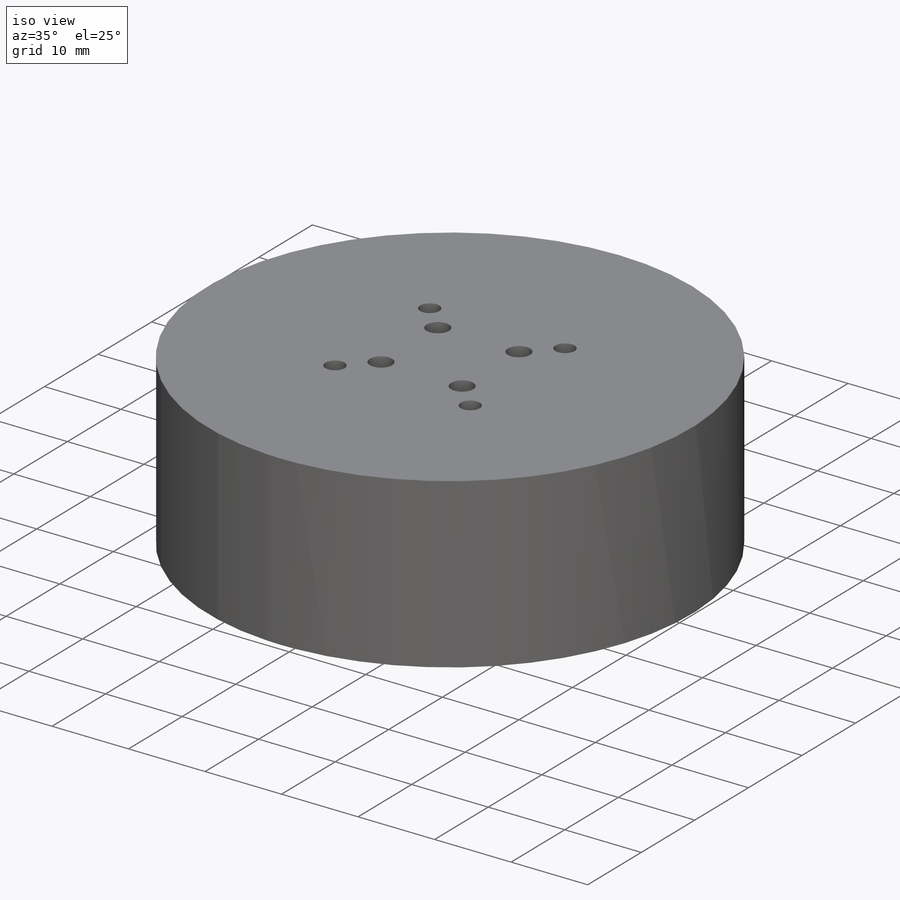
[diagram: iso view]
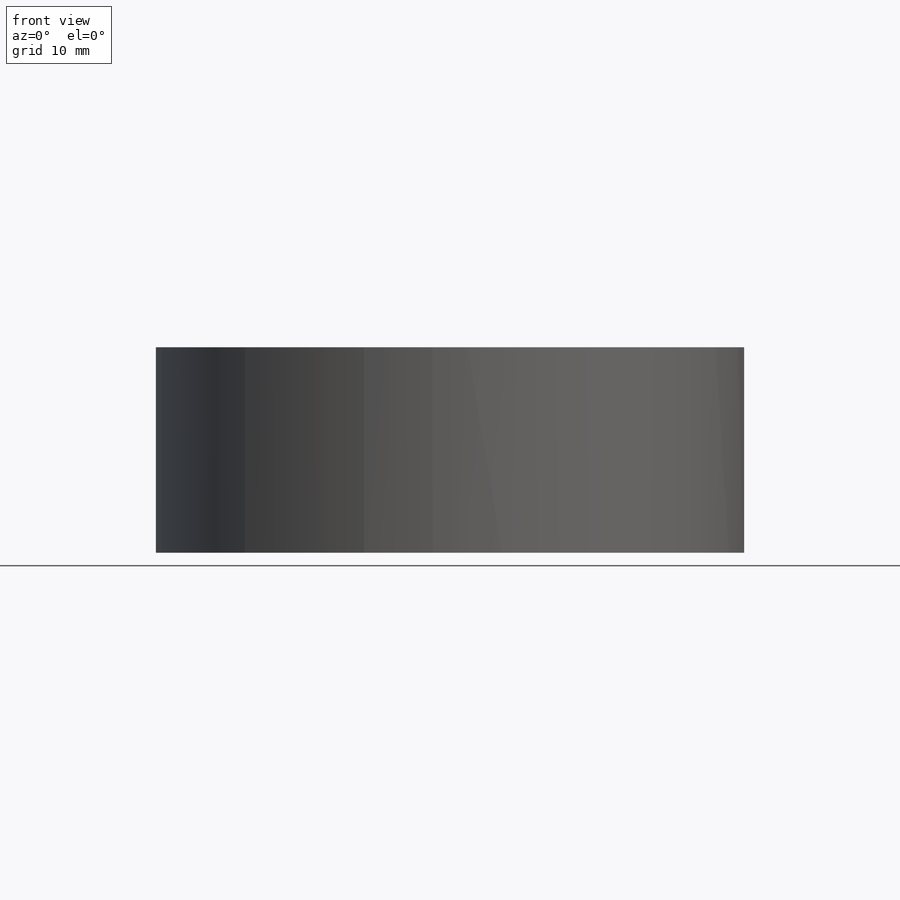
[diagram: front view]
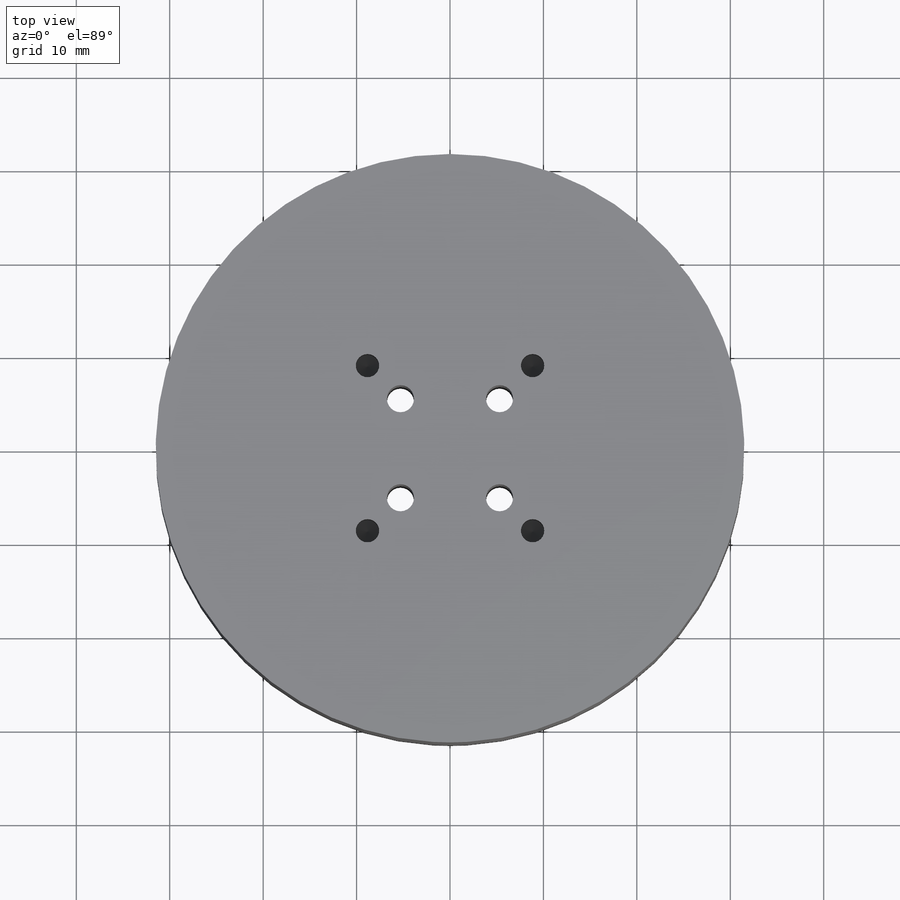
[diagram: top view]
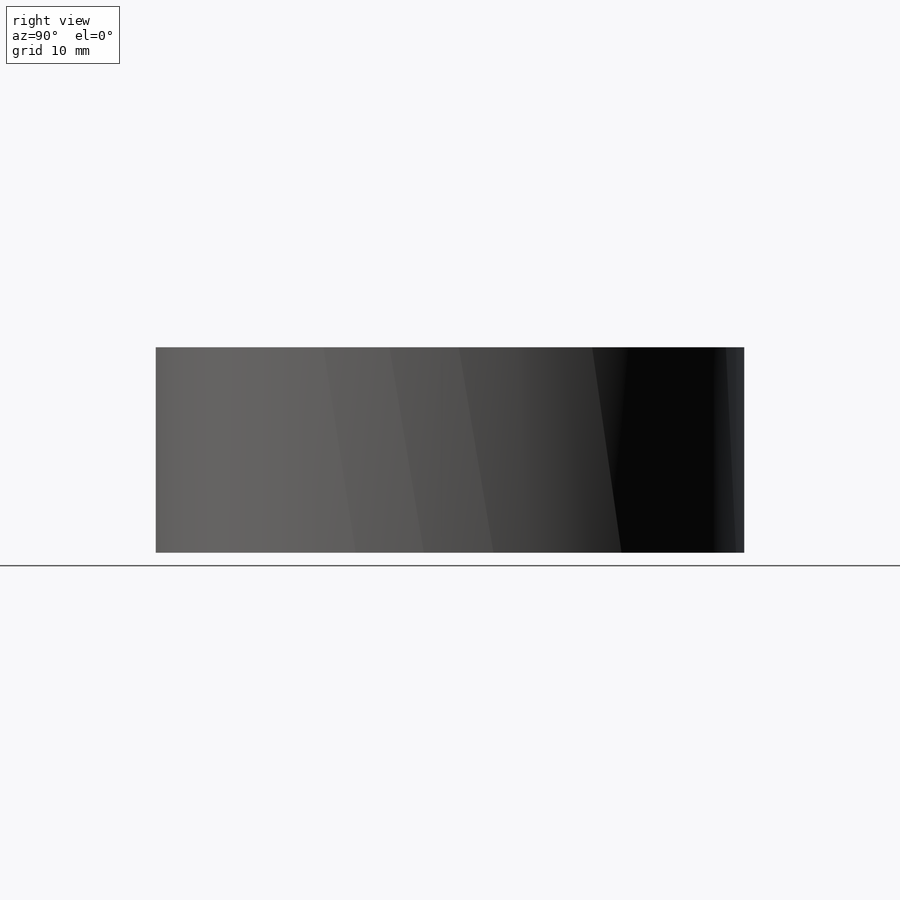
[diagram: right view]
SOLIDWORKS PART (.sldprt)
format: sldprt  version: not decoded by parser v0  size: 231,424 bytes
history: native  units: mm
features: sketch x7, hole x3, material x1, extrude x1 (+13 scaffold rows collapsed)
feature tree (25):
  scaffold x13  (default folders/planes/origin — collapsed)
  material  "Material <not specified>"
  sketch  "Sketch1"  dims[D1=~33.142647mm]
  extrude  "Boss-Extrude1"  Depth=22mm
  hole  "Tap Drill for M3x0.5 Tap1"  Diameter=2.5mm Depth=4.76mm
  sketch  "Sketch6"  dims[D1=12.5mm]
  sketch  "Sketch5"  dims[hole-wizard template sketch: 47 standard entries collapsed; hole parameters kept: c15.Hole Depth=4.76mm c15.D3=~14.816244mm c15.Drill Angle=118.0deg]
  hole  "Tap Drill for M2.5x0.45 Tap1"  Diameter=2.05mm Depth=3.5mm
  sketch  "Sketch8"  dims[D1=7.5mm]
  sketch  "Sketch7"  dims[hole-wizard template sketch: 47 standard entries collapsed; hole parameters kept: c15.Hole Depth=3.5mm c15.D3=~14.816244mm c15.Drill Angle=118.0deg]
  hole  "M2.5 Clearance Hole1"  Diameter=2.9mm Depth=22mm
  sketch  "Sketch10"  dims[D1=7.5mm]
  sketch  "Sketch9"  dims[hole-wizard template sketch: 60 standard entries collapsed; hole parameters kept: c18.Thru Hole Depth=22.0mm]
decode coverage: 11 of 11 modeling features carry decoded parameters
note: ~ marks probable driven/reference dimensions
note: suppression state not decoded; provenance and decode notes live in map.json
